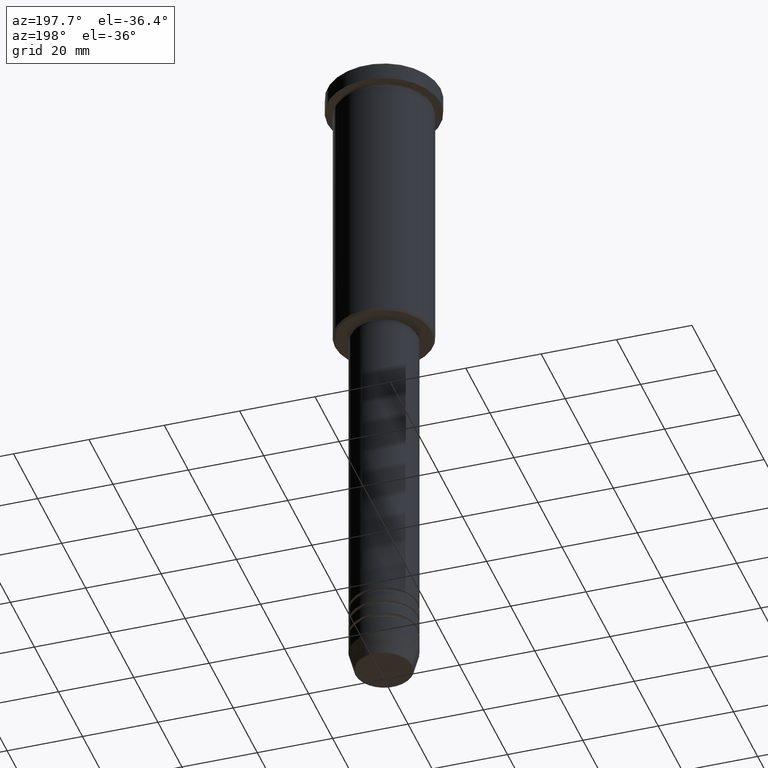
[diagram: clean part render]
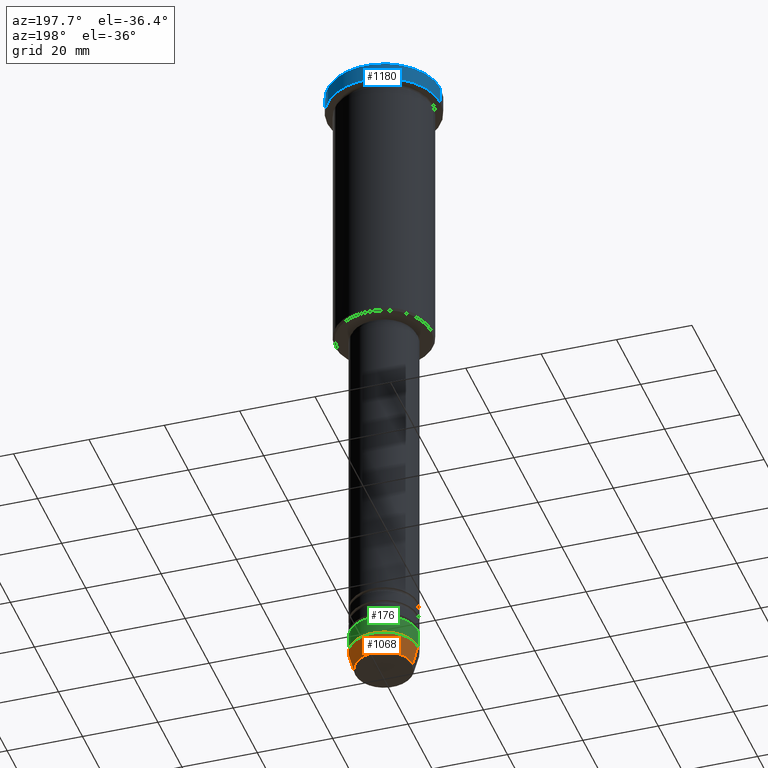
[diagram: same view with three faces highlighted in distinct colors, each labeled with its STEP entity id]
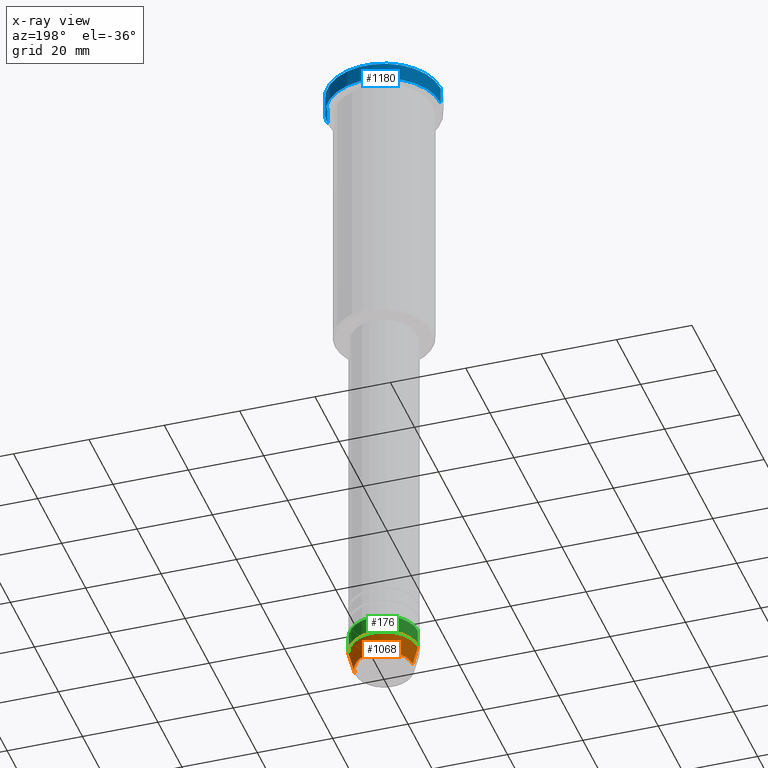
[diagram: x-ray of the same camera — body ghosted, the three highlighted faces saturated]
A machine part, auxiliary view with three faces highlighted in distinct colors.
The next image is the same camera in x-ray (body ghosted, the three faces saturated) — at least one of them is partly hidden behind the body in this view.
Their STEP definitions:

[orange] entity #1068 — the highlighted conical surface has half-angle 15 deg.
#49 = CARTESIAN_POINT ( 'NONE',  ( 9.000000000000001776, 0.000000000000000000, -174.5000000000000284 ) ) ;
#57 = VERTEX_POINT ( 'NONE', #964 ) ;
#76 = AXIS2_PLACEMENT_3D ( 'NONE', #909, #1089, #709 ) ;
#94 = EDGE_CURVE ( 'NONE', #1087, #57, #794, .T. ) ;
#146 = CIRCLE ( 'NONE', #301, 9.000000000000001776 ) ;
#148 = CONICAL_SURFACE ( 'NONE', #832, 9.000000000000001776, 0.2617993877991499629 ) ;
#269 = CARTESIAN_POINT ( 'NONE',  ( 9.000000000000001776, 0.000000000000000000, -174.5000000000000284 ) ) ;
#301 = AXIS2_PLACEMENT_3D ( 'NONE', #806, #1165, #339 ) ;
#339 = DIRECTION ( 'NONE',  ( 1.000000000000000000, 0.000000000000000000, 0.000000000000000000 ) ) ;
#358 = DIRECTION ( 'NONE',  ( -0.000000000000000000, -0.000000000000000000, 1.000000000000000000 ) ) ;
#425 = EDGE_CURVE ( 'NONE', #57, #925, #1032, .T. ) ;
#470 = CARTESIAN_POINT ( 'NONE',  ( -9.000000000000001776, 1.102182119232617911E-15, -174.5000000000000284 ) ) ;
#529 = CARTESIAN_POINT ( 'NONE',  ( 0.000000000000000000, 0.000000000000000000, -174.5000000000000284 ) ) ;
#535 = EDGE_CURVE ( 'NONE', #1087, #680, #604, .T. ) ;
#547 = CARTESIAN_POINT ( 'NONE',  ( 7.625578860783882362, 0.000000000000000000, -179.6294095225512422 ) ) ;
#563 = ORIENTED_EDGE ( 'NONE', *, *, #892, .F. ) ;
#604 = LINE ( 'NONE', #49, #695 ) ;
#641 = DIRECTION ( 'NONE',  ( 1.000000000000000000, 0.000000000000000000, 0.000000000000000000 ) ) ;
#680 = VERTEX_POINT ( 'NONE', #269 ) ;
#690 = DIRECTION ( 'NONE',  ( 0.2588190451025212391, 0.000000000000000000, 0.9659258262890680902 ) ) ;
#695 = VECTOR ( 'NONE', #690, 1000.000000000000114 ) ;
#709 = DIRECTION ( 'NONE',  ( 1.000000000000000000, 0.000000000000000000, 0.000000000000000000 ) ) ;
#794 = CIRCLE ( 'NONE', #76, 7.625578860783882362 ) ;
#806 = CARTESIAN_POINT ( 'NONE',  ( 0.000000000000000000, 0.000000000000000000, -174.5000000000000284 ) ) ;
#832 = AXIS2_PLACEMENT_3D ( 'NONE', #529, #358, #641 ) ;
#887 = VECTOR ( 'NONE', #1050, 1000.000000000000114 ) ;
#892 = EDGE_CURVE ( 'NONE', #680, #925, #146, .T. ) ;
#909 = CARTESIAN_POINT ( 'NONE',  ( 0.000000000000000000, 0.000000000000000000, -179.6294095225512422 ) ) ;
#912 = EDGE_LOOP ( 'NONE', ( #1164, #1132, #563, #1088 ) ) ;
#925 = VERTEX_POINT ( 'NONE', #470 ) ;
#964 = CARTESIAN_POINT ( 'NONE',  ( -7.625578860783882362, 1.018023096791544096E-15, -179.6294095225512422 ) ) ;
#1032 = LINE ( 'NONE', #1137, #887 ) ;
#1050 = DIRECTION ( 'NONE',  ( -0.2588190451025212391, 3.169619151431771721E-17, 0.9659258262890680902 ) ) ;
#1068 = ADVANCED_FACE ( 'NONE', ( #1084 ), #148, .T. ) ;
#1084 = FACE_OUTER_BOUND ( 'NONE', #912, .T. ) ;
#1087 = VERTEX_POINT ( 'NONE', #547 ) ;
#1088 = ORIENTED_EDGE ( 'NONE', *, *, #535, .F. ) ;
#1089 = DIRECTION ( 'NONE',  ( -0.000000000000000000, -0.000000000000000000, 1.000000000000000000 ) ) ;
#1132 = ORIENTED_EDGE ( 'NONE', *, *, #425, .T. ) ;
#1137 = CARTESIAN_POINT ( 'NONE',  ( -9.000000000000001776, 1.102182119232617911E-15, -174.5000000000000284 ) ) ;
#1164 = ORIENTED_EDGE ( 'NONE', *, *, #94, .T. ) ;
#1165 = DIRECTION ( 'NONE',  ( -0.000000000000000000, -0.000000000000000000, 1.000000000000000000 ) ) ;

[blue] entity #1180 — the highlighted cylindrical surface (partial cylindrical patch) has radius 15 mm, axis along (-0, -0, 1).
#3 = CARTESIAN_POINT ( 'NONE',  ( -15.00000000000000000, 1.836970198721029589E-15, -0.5000000000000107692 ) ) ;
#13 = ORIENTED_EDGE ( 'NONE', *, *, #648, .T. ) ;
#20 = AXIS2_PLACEMENT_3D ( 'NONE', #873, #601, #970 ) ;
#41 = CARTESIAN_POINT ( 'NONE',  ( 0.000000000000000000, 0.000000000000000000, -4.999999999999999112 ) ) ;
#54 = DIRECTION ( 'NONE',  ( -0.000000000000000000, -0.000000000000000000, 1.000000000000000000 ) ) ;
#86 = AXIS2_PLACEMENT_3D ( 'NONE', #41, #54, #895 ) ;
#134 = DIRECTION ( 'NONE',  ( -0.000000000000000000, -0.000000000000000000, 1.000000000000000000 ) ) ;
#143 = VECTOR ( 'NONE', #134, 1000.000000000000000 ) ;
#268 = AXIS2_PLACEMENT_3D ( 'NONE', #1052, #1031, #724 ) ;
#312 = CARTESIAN_POINT ( 'NONE',  ( 15.00000000000000000, 0.000000000000000000, 0.000000000000000000 ) ) ;
#322 = VECTOR ( 'NONE', #1144, 1000.000000000000000 ) ;
#382 = CYLINDRICAL_SURFACE ( 'NONE', #268, 15.00000000000000000 ) ;
#388 = EDGE_LOOP ( 'NONE', ( #448, #13, #737, #478 ) ) ;
#448 = ORIENTED_EDGE ( 'NONE', *, *, #913, .T. ) ;
#456 = FACE_OUTER_BOUND ( 'NONE', #388, .T. ) ;
#478 = ORIENTED_EDGE ( 'NONE', *, *, #1054, .F. ) ;
#601 = DIRECTION ( 'NONE',  ( 0.000000000000000000, 0.000000000000000000, -1.000000000000000000 ) ) ;
#616 = CIRCLE ( 'NONE', #86, 15.00000000000000000 ) ;
#648 = EDGE_CURVE ( 'NONE', #1116, #795, #879, .T. ) ;
#713 = CARTESIAN_POINT ( 'NONE',  ( 15.00000000000000000, 0.000000000000000000, -0.5000000000000107692 ) ) ;
#724 = DIRECTION ( 'NONE',  ( 1.000000000000000000, 0.000000000000000000, 0.000000000000000000 ) ) ;
#737 = ORIENTED_EDGE ( 'NONE', *, *, #1009, .T. ) ;
#783 = LINE ( 'NONE', #312, #322 ) ;
#795 = VERTEX_POINT ( 'NONE', #3 ) ;
#835 = CARTESIAN_POINT ( 'NONE',  ( 15.00000000000000000, 0.000000000000000000, -4.999999999999999112 ) ) ;
#873 = CARTESIAN_POINT ( 'NONE',  ( 0.000000000000000000, 0.000000000000000000, -0.5000000000000107692 ) ) ;
#879 = LINE ( 'NONE', #1140, #143 ) ;
#895 = DIRECTION ( 'NONE',  ( 1.000000000000000000, 0.000000000000000000, 0.000000000000000000 ) ) ;
#913 = EDGE_CURVE ( 'NONE', #1021, #1116, #616, .T. ) ;
#922 = CIRCLE ( 'NONE', #20, 15.00000000000000000 ) ;
#970 = DIRECTION ( 'NONE',  ( 1.000000000000000000, 0.000000000000000000, 0.000000000000000000 ) ) ;
#1009 = EDGE_CURVE ( 'NONE', #795, #1056, #922, .T. ) ;
#1021 = VERTEX_POINT ( 'NONE', #835 ) ;
#1031 = DIRECTION ( 'NONE',  ( -0.000000000000000000, -0.000000000000000000, 1.000000000000000000 ) ) ;
#1052 = CARTESIAN_POINT ( 'NONE',  ( 0.000000000000000000, 0.000000000000000000, 0.000000000000000000 ) ) ;
#1054 = EDGE_CURVE ( 'NONE', #1021, #1056, #783, .T. ) ;
#1055 = CARTESIAN_POINT ( 'NONE',  ( -15.00000000000000000, 1.836970198721029589E-15, -4.999999999999999112 ) ) ;
#1056 = VERTEX_POINT ( 'NONE', #713 ) ;
#1116 = VERTEX_POINT ( 'NONE', #1055 ) ;
#1140 = CARTESIAN_POINT ( 'NONE',  ( -15.00000000000000000, 1.836970198721029589E-15, 0.000000000000000000 ) ) ;
#1144 = DIRECTION ( 'NONE',  ( -0.000000000000000000, -0.000000000000000000, 1.000000000000000000 ) ) ;
#1180 = ADVANCED_FACE ( 'NONE', ( #456 ), #382, .T. ) ;

[green] entity #176 — the highlighted cylindrical surface (edge-blend (fillet) strip) has radius 9 mm, axis along (-0, -0, 1).
#31 = CYLINDRICAL_SURFACE ( 'NONE', #564, 9.000000000000001776 ) ;
#51 = VECTOR ( 'NONE', #296, 1000.000000000000000 ) ;
#101 = DIRECTION ( 'NONE',  ( -0.000000000000000000, -0.000000000000000000, 1.000000000000000000 ) ) ;
#108 = CARTESIAN_POINT ( 'NONE',  ( 0.000000000000000000, 0.000000000000000000, -169.5000000000000000 ) ) ;
#127 = CARTESIAN_POINT ( 'NONE',  ( -9.000000000000000000, 1.102182119232617714E-15, -169.5000000000000000 ) ) ;
#146 = CIRCLE ( 'NONE', #301, 9.000000000000001776 ) ;
#176 = ADVANCED_FACE ( 'NONE', ( #579 ), #31, .T. ) ;
#208 = ORIENTED_EDGE ( 'NONE', *, *, #575, .F. ) ;
#269 = CARTESIAN_POINT ( 'NONE',  ( 9.000000000000001776, 0.000000000000000000, -174.5000000000000284 ) ) ;
#271 = CARTESIAN_POINT ( 'NONE',  ( 9.000000000000000000, 0.000000000000000000, -169.5000000000000000 ) ) ;
#290 = DIRECTION ( 'NONE',  ( 1.000000000000000000, 0.000000000000000000, 0.000000000000000000 ) ) ;
#296 = DIRECTION ( 'NONE',  ( -0.000000000000000000, -0.000000000000000000, 1.000000000000000000 ) ) ;
#301 = AXIS2_PLACEMENT_3D ( 'NONE', #806, #1165, #339 ) ;
#302 = DIRECTION ( 'NONE',  ( -0.000000000000000000, -0.000000000000000000, 1.000000000000000000 ) ) ;
#339 = DIRECTION ( 'NONE',  ( 1.000000000000000000, 0.000000000000000000, 0.000000000000000000 ) ) ;
#342 = ORIENTED_EDGE ( 'NONE', *, *, #892, .T. ) ;
#405 = EDGE_LOOP ( 'NONE', ( #342, #422, #208, #791 ) ) ;
#415 = CIRCLE ( 'NONE', #807, 9.000000000000000000 ) ;
#422 = ORIENTED_EDGE ( 'NONE', *, *, #959, .T. ) ;
#460 = EDGE_CURVE ( 'NONE', #680, #561, #750, .T. ) ;
#467 = DIRECTION ( 'NONE',  ( 1.000000000000000000, 0.000000000000000000, 0.000000000000000000 ) ) ;
#470 = CARTESIAN_POINT ( 'NONE',  ( -9.000000000000001776, 1.102182119232617911E-15, -174.5000000000000284 ) ) ;
#476 = LINE ( 'NONE', #852, #808 ) ;
#492 = VERTEX_POINT ( 'NONE', #127 ) ;
#561 = VERTEX_POINT ( 'NONE', #271 ) ;
#564 = AXIS2_PLACEMENT_3D ( 'NONE', #1129, #101, #467 ) ;
#575 = EDGE_CURVE ( 'NONE', #561, #492, #415, .T. ) ;
#577 = DIRECTION ( 'NONE',  ( -0.000000000000000000, -0.000000000000000000, 1.000000000000000000 ) ) ;
#579 = FACE_OUTER_BOUND ( 'NONE', #405, .T. ) ;
#680 = VERTEX_POINT ( 'NONE', #269 ) ;
#750 = LINE ( 'NONE', #1118, #51 ) ;
#791 = ORIENTED_EDGE ( 'NONE', *, *, #460, .F. ) ;
#806 = CARTESIAN_POINT ( 'NONE',  ( 0.000000000000000000, 0.000000000000000000, -174.5000000000000284 ) ) ;
#807 = AXIS2_PLACEMENT_3D ( 'NONE', #108, #302, #290 ) ;
#808 = VECTOR ( 'NONE', #577, 1000.000000000000000 ) ;
#852 = CARTESIAN_POINT ( 'NONE',  ( -9.000000000000001776, 1.102182119232617911E-15, 0.000000000000000000 ) ) ;
#892 = EDGE_CURVE ( 'NONE', #680, #925, #146, .T. ) ;
#925 = VERTEX_POINT ( 'NONE', #470 ) ;
#959 = EDGE_CURVE ( 'NONE', #925, #492, #476, .T. ) ;
#1118 = CARTESIAN_POINT ( 'NONE',  ( 9.000000000000001776, 0.000000000000000000, 0.000000000000000000 ) ) ;
#1129 = CARTESIAN_POINT ( 'NONE',  ( 0.000000000000000000, 0.000000000000000000, 0.000000000000000000 ) ) ;
#1165 = DIRECTION ( 'NONE',  ( -0.000000000000000000, -0.000000000000000000, 1.000000000000000000 ) ) ;